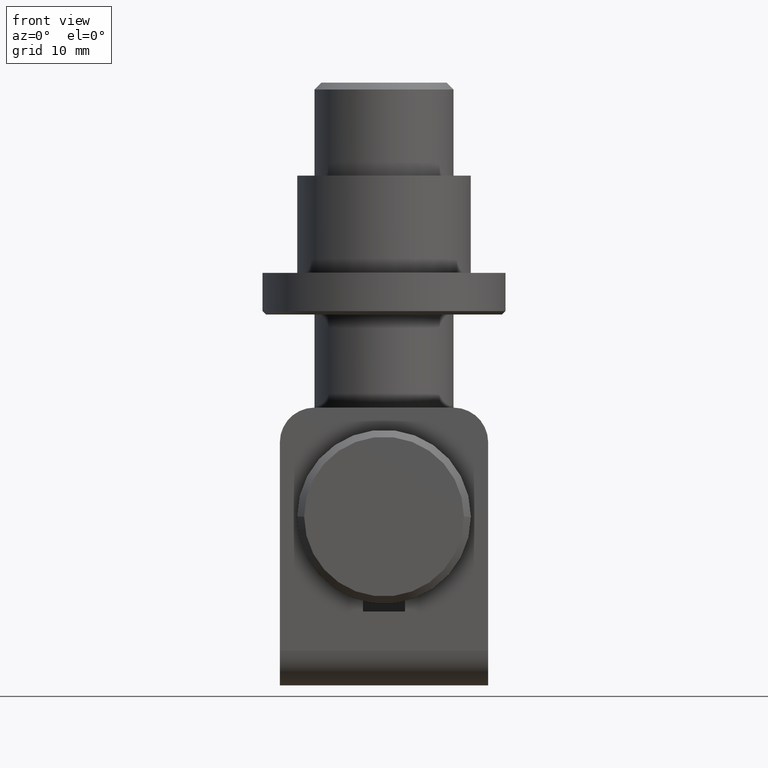
[diagram: clean part render]
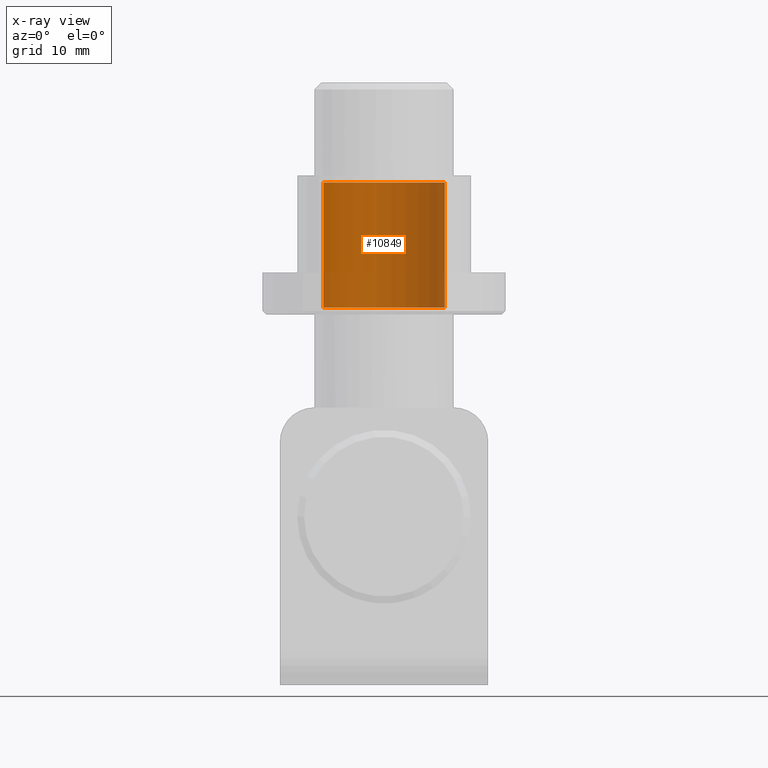
[diagram: x-ray — body ghosted, one internal face saturated and labeled with its STEP entity id]
A machine part, front view, then the same camera in x-ray: the body is ghosted and one INTERNAL B-rep face — a face not visible from any outside direction — is saturated and labeled: STEP entity #10849.
In plain terms, the highlighted cylindrical surface (partial cylindrical patch) has radius 8.75 mm, axis along (0, 0, 1).
Its self-contained STEP definition (entity closure, byte-faithful):
#1321 = AXIS2_PLACEMENT_3D ( 'NONE', #9643, #2228, #5962 ) ;
#1454 = CARTESIAN_POINT ( 'NONE',  ( 0.000000000000000000, 0.000000000000000000, 8.999999999999987566 ) ) ;
#1884 = VERTEX_POINT ( 'NONE', #6103 ) ;
#2228 = DIRECTION ( 'NONE',  ( -0.000000000000000000, -0.000000000000000000, -1.000000000000000000 ) ) ;
#2500 = CIRCLE ( 'NONE', #4362, 8.749999999999994671 ) ;
#2703 = DIRECTION ( 'NONE',  ( -1.000000000000000000, 0.000000000000000000, 0.000000000000000000 ) ) ;
#3048 = CARTESIAN_POINT ( 'NONE',  ( -8.749999999999994671, 1.071565949253933138E-15, 10.00000000000000178 ) ) ;
#3307 = CARTESIAN_POINT ( 'NONE',  ( 8.749999999999994671, 0.000000000000000000, -8.999999999999987566 ) ) ;
#4362 = AXIS2_PLACEMENT_3D ( 'NONE', #1454, #5091, #2703 ) ;
#5091 = DIRECTION ( 'NONE',  ( 0.000000000000000000, 0.000000000000000000, 1.000000000000000000 ) ) ;
#5962 = DIRECTION ( 'NONE',  ( 1.000000000000000000, 0.000000000000000000, 0.000000000000000000 ) ) ;
#6103 = CARTESIAN_POINT ( 'NONE',  ( 8.749999999999994671, 0.000000000000000000, 8.999999999999987566 ) ) ;
#6157 = ORIENTED_EDGE ( 'NONE', *, *, #12087, .F. ) ;
#6638 = VECTOR ( 'NONE', #15407, 1000.000000000000000 ) ;
#7308 = EDGE_LOOP ( 'NONE', ( #6157, #12001, #14636, #14879 ) ) ;
#7380 = CARTESIAN_POINT ( 'NONE',  ( 8.749999999999994671, 0.000000000000000000, 10.00000000000000178 ) ) ;
#8035 = AXIS2_PLACEMENT_3D ( 'NONE', #15627, #10975, #14692 ) ;
#8054 = EDGE_CURVE ( 'NONE', #1884, #10294, #2500, .T. ) ;
#8546 = CARTESIAN_POINT ( 'NONE',  ( -8.749999999999994671, 1.071565949253933138E-15, -8.999999999999987566 ) ) ;
#8578 = LINE ( 'NONE', #3048, #6638 ) ;
#9509 = EDGE_CURVE ( 'NONE', #13363, #1884, #11470, .T. ) ;
#9643 = CARTESIAN_POINT ( 'NONE',  ( 0.000000000000000000, 0.000000000000000000, -8.999999999999987566 ) ) ;
#9759 = CYLINDRICAL_SURFACE ( 'NONE', #8035, 8.749999999999994671 ) ;
#10294 = VERTEX_POINT ( 'NONE', #10820 ) ;
#10820 = CARTESIAN_POINT ( 'NONE',  ( -8.749999999999994671, 1.071565949253933138E-15, 8.999999999999987566 ) ) ;
#10849 = ADVANCED_FACE ( 'NONE', ( #11902 ), #9759, .F. ) ;
#10975 = DIRECTION ( 'NONE',  ( -0.000000000000000000, -0.000000000000000000, 1.000000000000000000 ) ) ;
#11470 = LINE ( 'NONE', #7380, #12037 ) ;
#11902 = FACE_OUTER_BOUND ( 'NONE', #7308, .T. ) ;
#12001 = ORIENTED_EDGE ( 'NONE', *, *, #15659, .T. ) ;
#12037 = VECTOR ( 'NONE', #12226, 1000.000000000000000 ) ;
#12087 = EDGE_CURVE ( 'NONE', #15935, #10294, #8578, .T. ) ;
#12226 = DIRECTION ( 'NONE',  ( -0.000000000000000000, -0.000000000000000000, 1.000000000000000000 ) ) ;
#13363 = VERTEX_POINT ( 'NONE', #3307 ) ;
#14636 = ORIENTED_EDGE ( 'NONE', *, *, #9509, .T. ) ;
#14692 = DIRECTION ( 'NONE',  ( 1.000000000000000000, 0.000000000000000000, 0.000000000000000000 ) ) ;
#14879 = ORIENTED_EDGE ( 'NONE', *, *, #8054, .T. ) ;
#15407 = DIRECTION ( 'NONE',  ( -0.000000000000000000, -0.000000000000000000, 1.000000000000000000 ) ) ;
#15627 = CARTESIAN_POINT ( 'NONE',  ( 0.000000000000000000, 0.000000000000000000, 10.00000000000000178 ) ) ;
#15659 = EDGE_CURVE ( 'NONE', #15935, #13363, #15964, .T. ) ;
#15935 = VERTEX_POINT ( 'NONE', #8546 ) ;
#15964 = CIRCLE ( 'NONE', #1321, 8.749999999999994671 ) ;